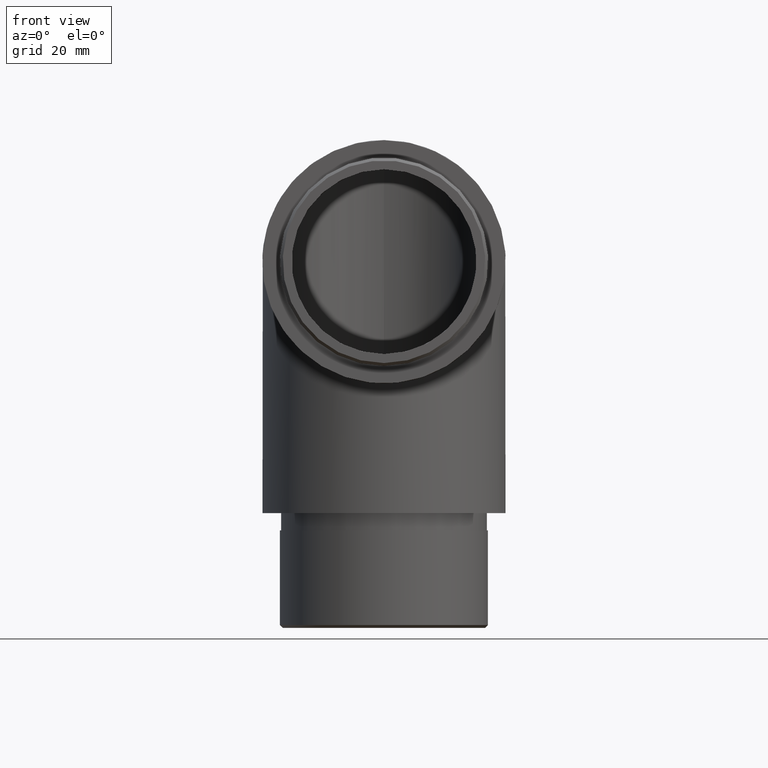
[diagram: clean part render]
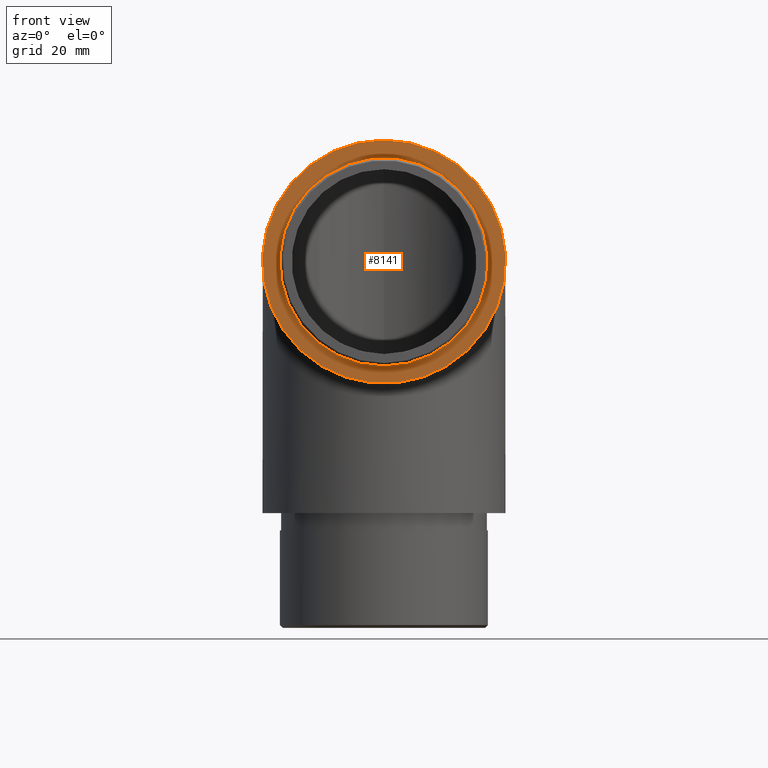
[diagram: same view with one face highlighted and labeled with its STEP entity id]
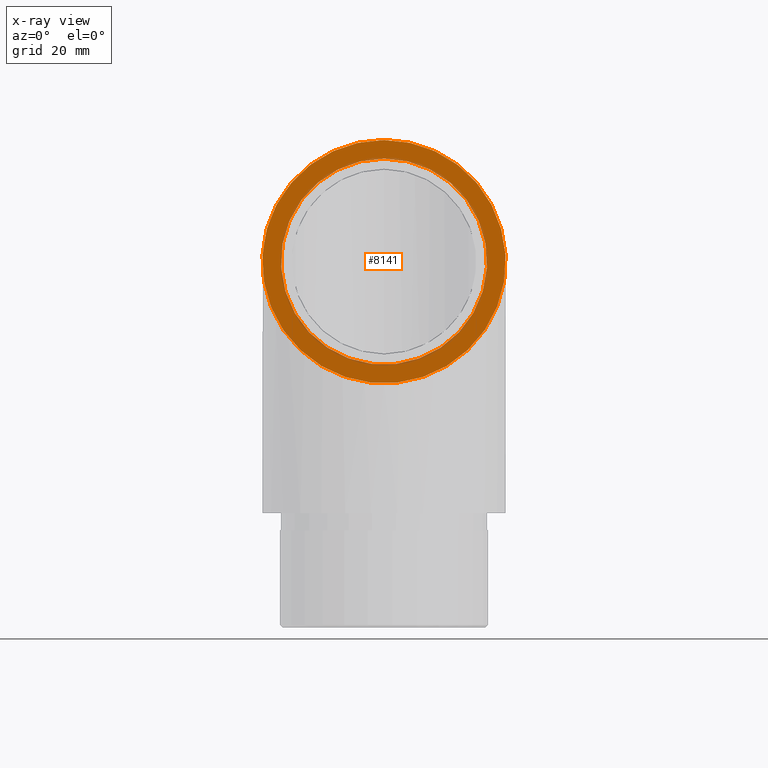
[diagram: x-ray of the same camera — body ghosted, the highlighted face saturated]
A machine part, front view. The second image highlights one B-rep face of the part: STEP entity #8141.
The next image is the same camera in x-ray: the body ghosted, the highlighted face saturated — about 6% of this face is hidden behind the body in this view.
In plain terms, the highlighted planar face has unit normal (0, 1, 0).
Its self-contained STEP definition (entity closure, byte-faithful):
#155 = CARTESIAN_POINT ( 'NONE',  ( 0.0000000000000000000, 0.0000000000000000000, 0.0000000000000000000 ) ) ;
#499 = FACE_BOUND ( 'NONE', #2192, .T. ) ;
#2002 = DIRECTION ( 'NONE',  ( 0.0000000000000000000, -0.0000000000000000000, 1.000000000000000000 ) ) ;
#2095 = VERTEX_POINT ( 'NONE', #2623 ) ;
#2192 = EDGE_LOOP ( 'NONE', ( #3675 ) ) ;
#2623 = CARTESIAN_POINT ( 'NONE',  ( 0.0000000000000000000, 0.0000000000000000000, 17.94999999999999900 ) ) ;
#2985 = DIRECTION ( 'NONE',  ( -0.0000000000000000000, -1.000000000000000000, -0.0000000000000000000 ) ) ;
#3291 = ORIENTED_EDGE ( 'NONE', *, *, #4336, .F. ) ;
#3675 = ORIENTED_EDGE ( 'NONE', *, *, #10444, .F. ) ;
#4336 = EDGE_CURVE ( 'NONE', #7327, #7327, #12407, .T. ) ;
#4663 = AXIS2_PLACEMENT_3D ( 'NONE', #11529, #10650, #2002 ) ;
#4908 = DIRECTION ( 'NONE',  ( 0.0000000000000000000, 0.0000000000000000000, 1.000000000000000000 ) ) ;
#4919 = PLANE ( 'NONE',  #4663 ) ;
#5051 = EDGE_LOOP ( 'NONE', ( #3291 ) ) ;
#5067 = AXIS2_PLACEMENT_3D ( 'NONE', #12382, #10486, #6553 ) ;
#5626 = CARTESIAN_POINT ( 'NONE',  ( 0.0000000000000000000, 0.0000000000000000000, 21.19999999999999900 ) ) ;
#5748 = FACE_OUTER_BOUND ( 'NONE', #5051, .T. ) ;
#6539 = AXIS2_PLACEMENT_3D ( 'NONE', #155, #2985, #4908 ) ;
#6553 = DIRECTION ( 'NONE',  ( 0.0000000000000000000, 0.0000000000000000000, 1.000000000000000000 ) ) ;
#7327 = VERTEX_POINT ( 'NONE', #5626 ) ;
#8141 = ADVANCED_FACE ( 'NONE', ( #5748, #499 ), #4919, .F. ) ;
#8976 = CIRCLE ( 'NONE', #6539, 17.94999999999999900 ) ;
#10444 = EDGE_CURVE ( 'NONE', #2095, #2095, #8976, .T. ) ;
#10486 = DIRECTION ( 'NONE',  ( 0.0000000000000000000, 1.000000000000000000, 0.0000000000000000000 ) ) ;
#10650 = DIRECTION ( 'NONE',  ( 0.0000000000000000000, 1.000000000000000000, 0.0000000000000000000 ) ) ;
#11529 = CARTESIAN_POINT ( 'NONE',  ( 0.0000000000000000000, 0.0000000000000000000, 0.0000000000000000000 ) ) ;
#12382 = CARTESIAN_POINT ( 'NONE',  ( 0.0000000000000000000, 0.0000000000000000000, 0.0000000000000000000 ) ) ;
#12407 = CIRCLE ( 'NONE', #5067, 21.19999999999999900 ) ;